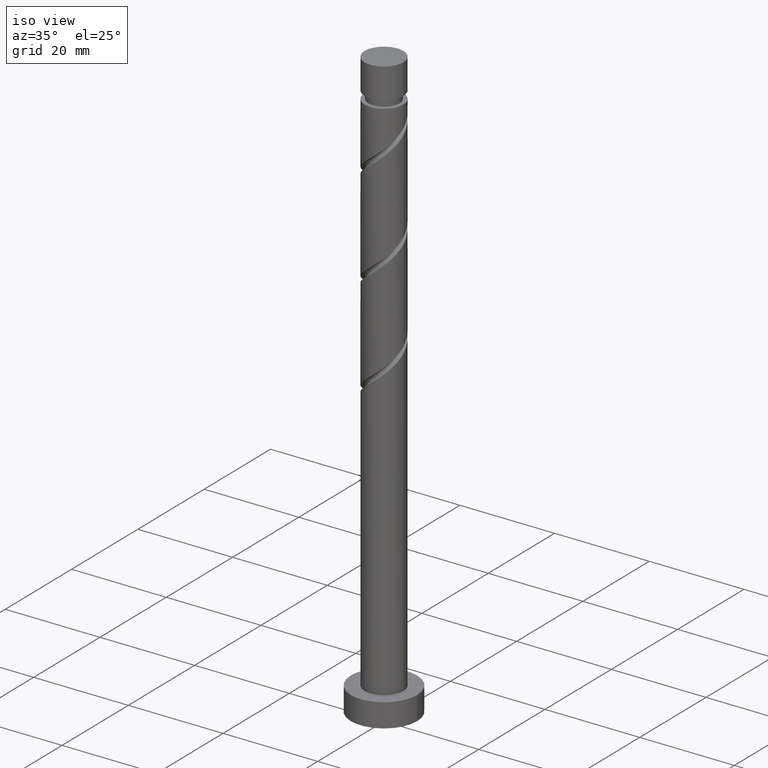
[diagram: clean part render]
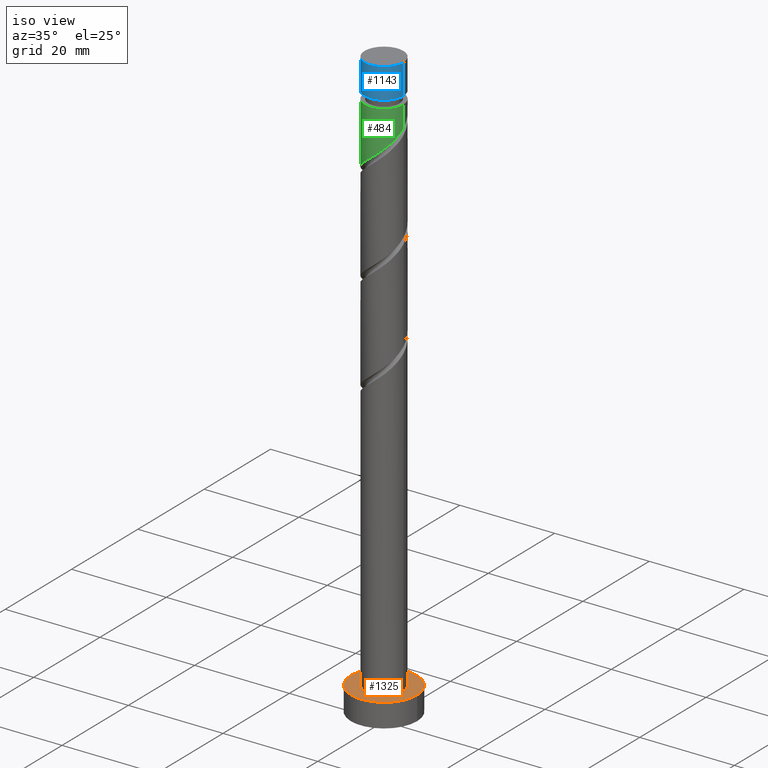
[diagram: same view with three faces highlighted in distinct colors, each labeled with its STEP entity id]
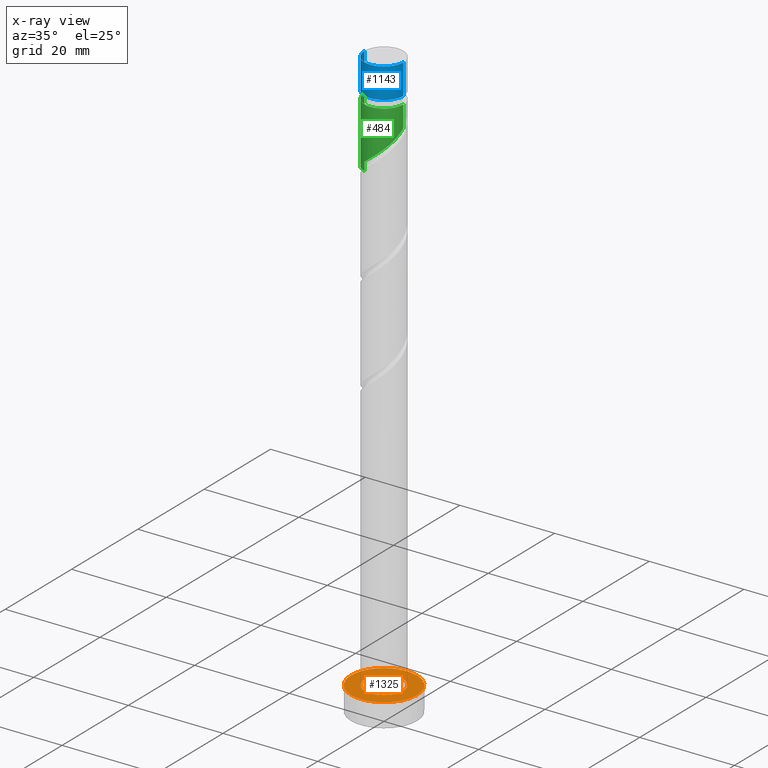
[diagram: x-ray of the same camera — body ghosted, the three highlighted faces saturated]
A machine part, iso view with three faces highlighted in distinct colors.
The next image is the same camera in x-ray (body ghosted, the three faces saturated) — at least one of them is partly hidden behind the body in this view.
Their STEP definitions:

[orange] entity #1325 — the highlighted planar face has unit normal (0, 0, 1).
#84 = PLANE ( 'NONE',  #862 ) ;
#85 = EDGE_CURVE ( 'NONE', #743, #1449, #1545, .T. ) ;
#96 = FACE_BOUND ( 'NONE', #1326, .T. ) ;
#102 = AXIS2_PLACEMENT_3D ( 'NONE', #293, #398, #1034 ) ;
#118 = DIRECTION ( 'NONE',  ( 1.000000000000000000, 0.000000000000000000, 0.000000000000000000 ) ) ;
#220 = ORIENTED_EDGE ( 'NONE', *, *, #85, .T. ) ;
#230 = FACE_OUTER_BOUND ( 'NONE', #344, .T. ) ;
#236 = EDGE_CURVE ( 'NONE', #1510, #405, #797, .T. ) ;
#241 = CARTESIAN_POINT ( 'NONE',  ( 0.000000000000000000, 0.000000000000000000, 5.000000000000000000 ) ) ;
#293 = CARTESIAN_POINT ( 'NONE',  ( 0.000000000000000000, 0.000000000000000000, 5.000000000000000000 ) ) ;
#336 = DIRECTION ( 'NONE',  ( 0.000000000000000000, 0.000000000000000000, 1.000000000000000000 ) ) ;
#344 = EDGE_LOOP ( 'NONE', ( #1548, #220 ) ) ;
#398 = DIRECTION ( 'NONE',  ( 0.000000000000000000, 0.000000000000000000, 1.000000000000000000 ) ) ;
#405 = VERTEX_POINT ( 'NONE', #668 ) ;
#460 = CARTESIAN_POINT ( 'NONE',  ( 7.000000000000000000, 8.572527594031473190E-16, 5.000000000000000000 ) ) ;
#486 = DIRECTION ( 'NONE',  ( 0.000000000000000000, 0.000000000000000000, 1.000000000000000000 ) ) ;
#580 = CARTESIAN_POINT ( 'NONE',  ( 0.000000000000000000, 0.000000000000000000, 5.000000000000000000 ) ) ;
#596 = DIRECTION ( 'NONE',  ( 1.000000000000000000, 0.000000000000000000, 0.000000000000000000 ) ) ;
#668 = CARTESIAN_POINT ( 'NONE',  ( 4.099999999999999645, 5.021051876504147385E-16, 5.000000000000000000 ) ) ;
#691 = DIRECTION ( 'NONE',  ( 1.000000000000000000, 0.000000000000000000, 0.000000000000000000 ) ) ;
#701 = ORIENTED_EDGE ( 'NONE', *, *, #1049, .F. ) ;
#714 = EDGE_CURVE ( 'NONE', #1449, #743, #1038, .T. ) ;
#719 = CARTESIAN_POINT ( 'NONE',  ( 0.000000000000000000, 0.000000000000000000, 5.000000000000000000 ) ) ;
#743 = VERTEX_POINT ( 'NONE', #460 ) ;
#797 = CIRCLE ( 'NONE', #1416, 4.099999999999999645 ) ;
#862 = AXIS2_PLACEMENT_3D ( 'NONE', #580, #1412, #1315 ) ;
#973 = ORIENTED_EDGE ( 'NONE', *, *, #236, .F. ) ;
#1034 = DIRECTION ( 'NONE',  ( 1.000000000000000000, 0.000000000000000000, 0.000000000000000000 ) ) ;
#1038 = CIRCLE ( 'NONE', #1247, 7.000000000000000000 ) ;
#1049 = EDGE_CURVE ( 'NONE', #405, #1510, #1069, .T. ) ;
#1069 = CIRCLE ( 'NONE', #102, 4.099999999999999645 ) ;
#1104 = CARTESIAN_POINT ( 'NONE',  ( -4.099999999999999645, 0.000000000000000000, 5.000000000000000000 ) ) ;
#1113 = CARTESIAN_POINT ( 'NONE',  ( -7.000000000000000000, 0.000000000000000000, 5.000000000000000000 ) ) ;
#1186 = CARTESIAN_POINT ( 'NONE',  ( 0.000000000000000000, 0.000000000000000000, 5.000000000000000000 ) ) ;
#1247 = AXIS2_PLACEMENT_3D ( 'NONE', #1186, #1324, #691 ) ;
#1315 = DIRECTION ( 'NONE',  ( 1.000000000000000000, 0.000000000000000000, -0.000000000000000000 ) ) ;
#1324 = DIRECTION ( 'NONE',  ( 0.000000000000000000, 0.000000000000000000, 1.000000000000000000 ) ) ;
#1325 = ADVANCED_FACE ( 'NONE', ( #96, #230 ), #84, .T. ) ;
#1326 = EDGE_LOOP ( 'NONE', ( #973, #701 ) ) ;
#1366 = AXIS2_PLACEMENT_3D ( 'NONE', #241, #336, #118 ) ;
#1412 = DIRECTION ( 'NONE',  ( 0.000000000000000000, 0.000000000000000000, 1.000000000000000000 ) ) ;
#1416 = AXIS2_PLACEMENT_3D ( 'NONE', #719, #486, #596 ) ;
#1449 = VERTEX_POINT ( 'NONE', #1113 ) ;
#1510 = VERTEX_POINT ( 'NONE', #1104 ) ;
#1545 = CIRCLE ( 'NONE', #1366, 7.000000000000000000 ) ;
#1548 = ORIENTED_EDGE ( 'NONE', *, *, #714, .T. ) ;

[blue] entity #1143 — the highlighted cylindrical surface (edge-blend (fillet) strip) has radius 4.1 mm, axis along (-0, -0, -1).
#1 = CARTESIAN_POINT ( 'NONE',  ( -4.099999999999999645, 0.000000000000000000, 125.0000000000000000 ) ) ;
#21 = ORIENTED_EDGE ( 'NONE', *, *, #1210, .F. ) ;
#61 = DIRECTION ( 'NONE',  ( -1.000000000000000000, 0.000000000000000000, 0.000000000000000000 ) ) ;
#126 = LINE ( 'NONE', #1, #1059 ) ;
#155 = EDGE_CURVE ( 'NONE', #993, #478, #126, .T. ) ;
#240 = CARTESIAN_POINT ( 'NONE',  ( 4.099999999999997868, 5.021051876504146399E-16, 118.5859968129480251 ) ) ;
#262 = VECTOR ( 'NONE', #639, 1000.000000000000000 ) ;
#280 = ORIENTED_EDGE ( 'NONE', *, *, #522, .F. ) ;
#295 = DIRECTION ( 'NONE',  ( 1.000000000000000000, 0.000000000000000000, 0.000000000000000000 ) ) ;
#478 = VERTEX_POINT ( 'NONE', #1520 ) ;
#483 = LINE ( 'NONE', #983, #262 ) ;
#489 = DIRECTION ( 'NONE',  ( -0.000000000000000000, -0.000000000000000000, -1.000000000000000000 ) ) ;
#519 = DIRECTION ( 'NONE',  ( -1.000000000000000000, 0.000000000000000000, 0.000000000000000000 ) ) ;
#522 = EDGE_CURVE ( 'NONE', #993, #1499, #1117, .T. ) ;
#605 = CIRCLE ( 'NONE', #1554, 4.099999999999997868 ) ;
#618 = CARTESIAN_POINT ( 'NONE',  ( 4.099999999999999645, 5.021051876504147385E-16, 125.0000000000000000 ) ) ;
#628 = EDGE_LOOP ( 'NONE', ( #1019, #280, #826, #21 ) ) ;
#632 = AXIS2_PLACEMENT_3D ( 'NONE', #1288, #795, #295 ) ;
#639 = DIRECTION ( 'NONE',  ( -0.000000000000000000, -0.000000000000000000, -1.000000000000000000 ) ) ;
#655 = CYLINDRICAL_SURFACE ( 'NONE', #1192, 4.099999999999999645 ) ;
#795 = DIRECTION ( 'NONE',  ( 0.000000000000000000, 0.000000000000000000, 1.000000000000000000 ) ) ;
#798 = VERTEX_POINT ( 'NONE', #240 ) ;
#826 = ORIENTED_EDGE ( 'NONE', *, *, #155, .T. ) ;
#877 = EDGE_CURVE ( 'NONE', #1499, #798, #483, .T. ) ;
#881 = DIRECTION ( 'NONE',  ( -0.000000000000000000, -0.000000000000000000, -1.000000000000000000 ) ) ;
#983 = CARTESIAN_POINT ( 'NONE',  ( 4.099999999999999645, 5.021051876504147385E-16, 125.0000000000000000 ) ) ;
#993 = VERTEX_POINT ( 'NONE', #1516 ) ;
#1019 = ORIENTED_EDGE ( 'NONE', *, *, #877, .F. ) ;
#1059 = VECTOR ( 'NONE', #489, 1000.000000000000000 ) ;
#1117 = CIRCLE ( 'NONE', #632, 4.099999999999999645 ) ;
#1143 = ADVANCED_FACE ( 'NONE', ( #1154 ), #655, .T. ) ;
#1154 = FACE_OUTER_BOUND ( 'NONE', #628, .T. ) ;
#1192 = AXIS2_PLACEMENT_3D ( 'NONE', #1396, #1277, #61 ) ;
#1210 = EDGE_CURVE ( 'NONE', #798, #478, #605, .T. ) ;
#1277 = DIRECTION ( 'NONE',  ( -0.000000000000000000, -0.000000000000000000, -1.000000000000000000 ) ) ;
#1288 = CARTESIAN_POINT ( 'NONE',  ( 0.000000000000000000, 0.000000000000000000, 125.0000000000000000 ) ) ;
#1396 = CARTESIAN_POINT ( 'NONE',  ( 0.000000000000000000, 0.000000000000000000, 125.0000000000000000 ) ) ;
#1404 = CARTESIAN_POINT ( 'NONE',  ( 0.000000000000000000, 0.000000000000000000, 118.5859968129480251 ) ) ;
#1499 = VERTEX_POINT ( 'NONE', #618 ) ;
#1516 = CARTESIAN_POINT ( 'NONE',  ( -4.099999999999999645, 0.000000000000000000, 125.0000000000000000 ) ) ;
#1520 = CARTESIAN_POINT ( 'NONE',  ( -4.099999999999997868, 0.000000000000000000, 118.5859968129480251 ) ) ;
#1554 = AXIS2_PLACEMENT_3D ( 'NONE', #1404, #881, #519 ) ;

[green] entity #484 — the highlighted cylindrical surface (edge-blend (fillet) strip) has radius 4.1 mm, axis along (-0, -0, -1).
#44 = CARTESIAN_POINT ( 'NONE',  ( 4.099999999999999645, 2.788717117676285769E-15, 112.4024659210849819 ) ) ;
#59 = CARTESIAN_POINT ( 'NONE',  ( -3.999713496394922796, -1.110847155465531921, 102.8834968129480387 ) ) ;
#101 = CARTESIAN_POINT ( 'NONE',  ( 4.100000000000000533, -0.4120655042562701986, 112.0681613456771260 ) ) ;
#116 = CARTESIAN_POINT ( 'NONE',  ( 3.569221300124400198, -2.017587497666032181, 110.6959968129480103 ) ) ;
#127 = CARTESIAN_POINT ( 'NONE',  ( -2.017587497666032181, -3.569221300124400198, 105.4876634796146817 ) ) ;
#149 = CARTESIAN_POINT ( 'NONE',  ( -4.099999999999997868, 0.000000000000000000, 116.9459968129480245 ) ) ;
#159 = CARTESIAN_POINT ( 'NONE',  ( 4.099999999999997868, 5.021051876504146399E-16, 116.9459968129480245 ) ) ;
#168 = LINE ( 'NONE', #432, #937 ) ;
#171 = CARTESIAN_POINT ( 'NONE',  ( 4.099999999999999645, 2.788717117676285769E-15, 112.4024659210849819 ) ) ;
#179 = DIRECTION ( 'NONE',  ( -1.000000000000000000, 0.000000000000000000, 0.000000000000000000 ) ) ;
#192 = CARTESIAN_POINT ( 'NONE',  ( -4.100000000000000533, 2.488855062012169283E-15, 101.9857992544182963 ) ) ;
#247 = CARTESIAN_POINT ( 'NONE',  ( 0.4656730691310446701, -4.073468864823452940, 107.5709968129480387 ) ) ;
#261 = VERTEX_POINT ( 'NONE', #149 ) ;
#329 = AXIS2_PLACEMENT_3D ( 'NONE', #1390, #889, #793 ) ;
#339 = CARTESIAN_POINT ( 'NONE',  ( -3.730198215631533643, -1.701652512147916019, 103.4043301462813531 ) ) ;
#358 = CARTESIAN_POINT ( 'NONE',  ( 2.292457868830300338, -3.460682934868145377, 109.1334968129480387 ) ) ;
#362 = EDGE_CURVE ( 'NONE', #1228, #1487, #470, .T. ) ;
#393 = DIRECTION ( 'NONE',  ( -0.000000000000000000, -0.000000000000000000, -1.000000000000000000 ) ) ;
#422 = VECTOR ( 'NONE', #430, 1000.000000000000000 ) ;
#430 = DIRECTION ( 'NONE',  ( -0.000000000000000000, -0.000000000000000000, -1.000000000000000000 ) ) ;
#432 = CARTESIAN_POINT ( 'NONE',  ( -4.099999999999999645, 0.000000000000000000, 125.0000000000000000 ) ) ;
#436 = EDGE_CURVE ( 'NONE', #443, #1228, #773, .T. ) ;
#443 = VERTEX_POINT ( 'NONE', #159 ) ;
#470 =( BOUNDED_CURVE ( )  B_SPLINE_CURVE ( 2, ( #171, #101, #1562, #1084, #116, #725, #959, #358, #842, #1332, #247, #900, #664, #1217, #127, #1309, #1322, #1184, #339, #59, #541, #784, #192 ),
 .UNSPECIFIED., .F., .T. ) 
 B_SPLINE_CURVE_WITH_KNOTS ( ( 3, 2, 2, 2, 2, 2, 2, 2, 2, 2, 2, 3 ),
 ( 0.3045322023138550271, 0.3125000000000000000, 0.3250000000000000111, 0.3375000000000000222, 0.3499999999999999778, 0.3624999999999999889, 0.3750000000000000000, 0.3875000000000000111, 0.4000000000000000222, 0.4124999999999999778, 0.4249999999999999889, 0.4295322023138551382 ),
 .UNSPECIFIED. ) 
 CURVE ( )  GEOMETRIC_REPRESENTATION_ITEM ( )  RATIONAL_B_SPLINE_CURVE ( ( 0.9039174447099329601, 0.9019565955404621471, 0.9090909090909106149, 0.8978984914501266790, 0.9090909090909106149, 0.8978984914501266790, 0.9090909090909106149, 0.8978984914501266790, 0.9090909090909106149, 0.8978984914501266790, 0.9090909090909106149, 0.8978984914501266790, 0.9090909090909106149, 0.8978984914501266790, 0.9090909090909106149, 0.8978984914501266790, 0.9090909090909106149, 0.8978984914501266790, 0.9090909090909106149, 0.8978984914501266790, 0.9090909090909106149, 0.9050328050005750358, 0.9039174447099329601 ) ) 
 REPRESENTATION_ITEM ( '' )  );
#484 = ADVANCED_FACE ( 'NONE', ( #1226 ), #1370, .T. ) ;
#508 = AXIS2_PLACEMENT_3D ( 'NONE', #603, #393, #179 ) ;
#541 = CARTESIAN_POINT ( 'NONE',  ( -4.073468864823452940, -0.4656730691310448367, 102.3626634796146959 ) ) ;
#591 = CARTESIAN_POINT ( 'NONE',  ( -4.100000000000000533, 2.488855062012169283E-15, 101.9857992544182963 ) ) ;
#603 = CARTESIAN_POINT ( 'NONE',  ( 0.000000000000000000, 0.000000000000000000, 125.0000000000000000 ) ) ;
#653 = ORIENTED_EDGE ( 'NONE', *, *, #436, .F. ) ;
#662 = ORIENTED_EDGE ( 'NONE', *, *, #362, .F. ) ;
#664 = CARTESIAN_POINT ( 'NONE',  ( -0.8158896984274286446, -4.017999999999999794, 106.5293301462813389 ) ) ;
#725 = CARTESIAN_POINT ( 'NONE',  ( 3.249666833500782559, -2.582896615680648988, 110.1751634796146817 ) ) ;
#773 = LINE ( 'NONE', #1268, #422 ) ;
#784 = CARTESIAN_POINT ( 'NONE',  ( -4.100000000000000533, -0.2335923235303762613, 102.1753103436255827 ) ) ;
#793 = DIRECTION ( 'NONE',  ( -1.000000000000000000, 0.000000000000000000, 0.000000000000000000 ) ) ;
#842 = CARTESIAN_POINT ( 'NONE',  ( 1.701652512147916019, -3.730198215631533643, 108.6126634796146959 ) ) ;
#889 = DIRECTION ( 'NONE',  ( -0.000000000000000000, -0.000000000000000000, -1.000000000000000000 ) ) ;
#900 = CARTESIAN_POINT ( 'NONE',  ( -0.1795010172034419704, -4.147224233251982639, 107.0501634796146533 ) ) ;
#911 = DIRECTION ( 'NONE',  ( -0.000000000000000000, -0.000000000000000000, -1.000000000000000000 ) ) ;
#937 = VECTOR ( 'NONE', #911, 1000.000000000000000 ) ;
#959 = CARTESIAN_POINT ( 'NONE',  ( 2.771062351165541671, -3.021789775274397183, 109.6543301462813531 ) ) ;
#1026 = EDGE_CURVE ( 'NONE', #443, #261, #1350, .T. ) ;
#1084 = CARTESIAN_POINT ( 'NONE',  ( 3.888775766748016061, -1.452278379651415374, 111.2168301462813673 ) ) ;
#1184 = CARTESIAN_POINT ( 'NONE',  ( -3.460682934868145377, -2.292457868830300338, 103.9251634796146959 ) ) ;
#1207 = EDGE_CURVE ( 'NONE', #261, #1487, #168, .T. ) ;
#1217 = CARTESIAN_POINT ( 'NONE',  ( -1.452278379651415374, -3.888775766748016061, 106.0084968129480245 ) ) ;
#1226 = FACE_OUTER_BOUND ( 'NONE', #1435, .T. ) ;
#1228 = VERTEX_POINT ( 'NONE', #44 ) ;
#1268 = CARTESIAN_POINT ( 'NONE',  ( 4.099999999999999645, 5.021051876504147385E-16, 125.0000000000000000 ) ) ;
#1309 = CARTESIAN_POINT ( 'NONE',  ( -2.582896615680648544, -3.249666833500782559, 104.9668301462813389 ) ) ;
#1322 = CARTESIAN_POINT ( 'NONE',  ( -3.021789775274397183, -2.771062351165541671, 104.4459968129480245 ) ) ;
#1332 = CARTESIAN_POINT ( 'NONE',  ( 1.110847155465531255, -3.999713496394922796, 108.0918301462813815 ) ) ;
#1350 = CIRCLE ( 'NONE', #329, 4.099999999999997868 ) ;
#1353 = ORIENTED_EDGE ( 'NONE', *, *, #1207, .T. ) ;
#1370 = CYLINDRICAL_SURFACE ( 'NONE', #508, 4.099999999999999645 ) ;
#1390 = CARTESIAN_POINT ( 'NONE',  ( 0.000000000000000000, 0.000000000000000000, 116.9459968129480245 ) ) ;
#1421 = ORIENTED_EDGE ( 'NONE', *, *, #1026, .T. ) ;
#1435 = EDGE_LOOP ( 'NONE', ( #653, #1421, #1353, #662 ) ) ;
#1487 = VERTEX_POINT ( 'NONE', #591 ) ;
#1562 = CARTESIAN_POINT ( 'NONE',  ( 4.017999999999999794, -0.8158896984274288666, 111.7376634796146817 ) ) ;